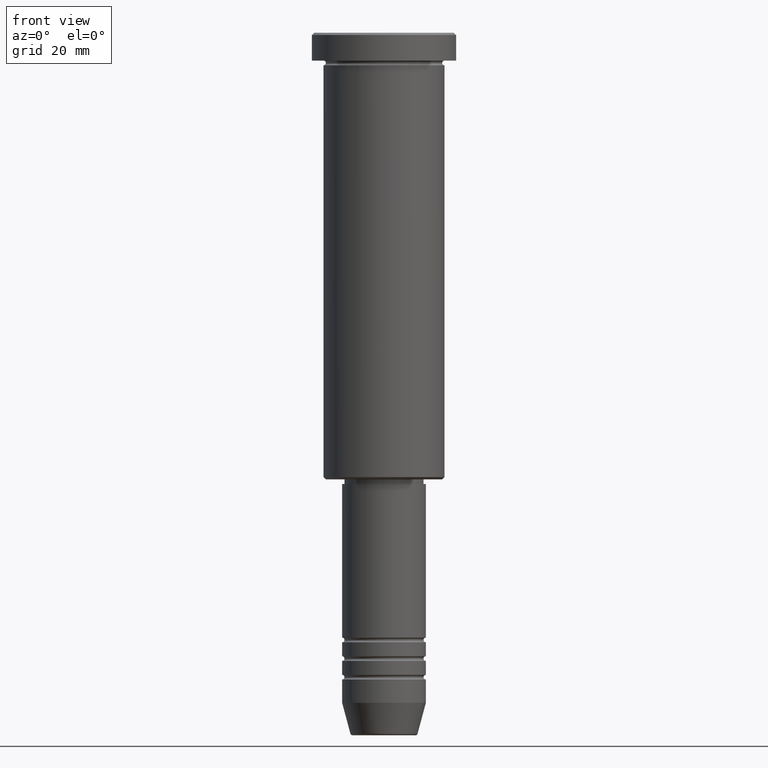
[diagram: clean part render]
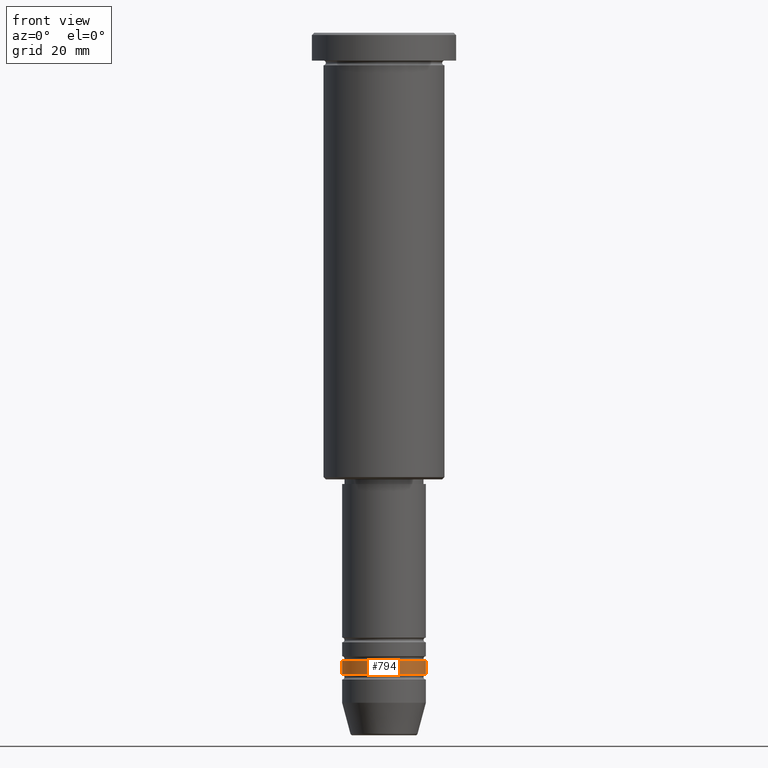
[diagram: same view with one face highlighted and labeled with its STEP entity id]
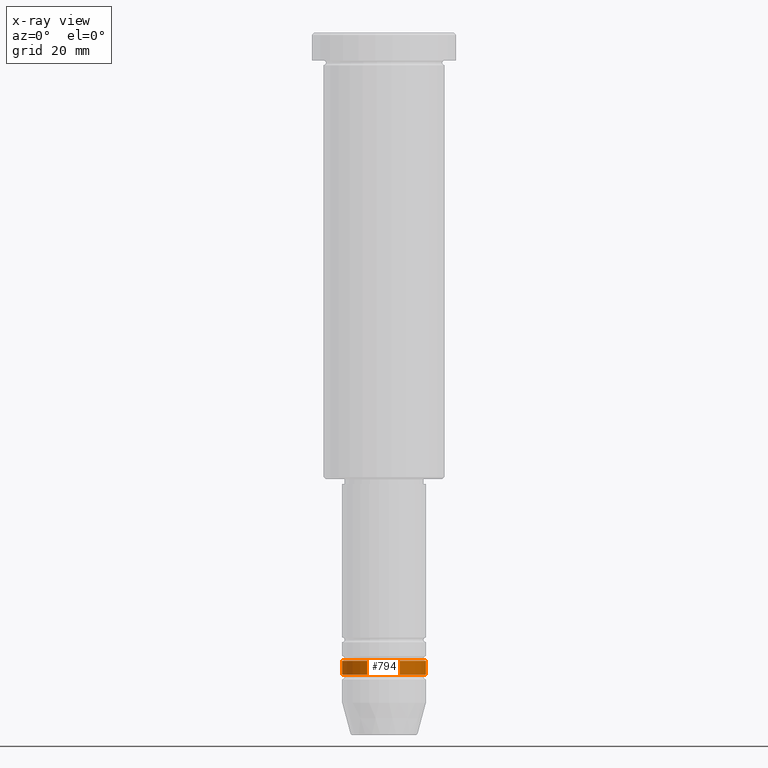
[diagram: x-ray of the same camera — body ghosted, the highlighted face saturated]
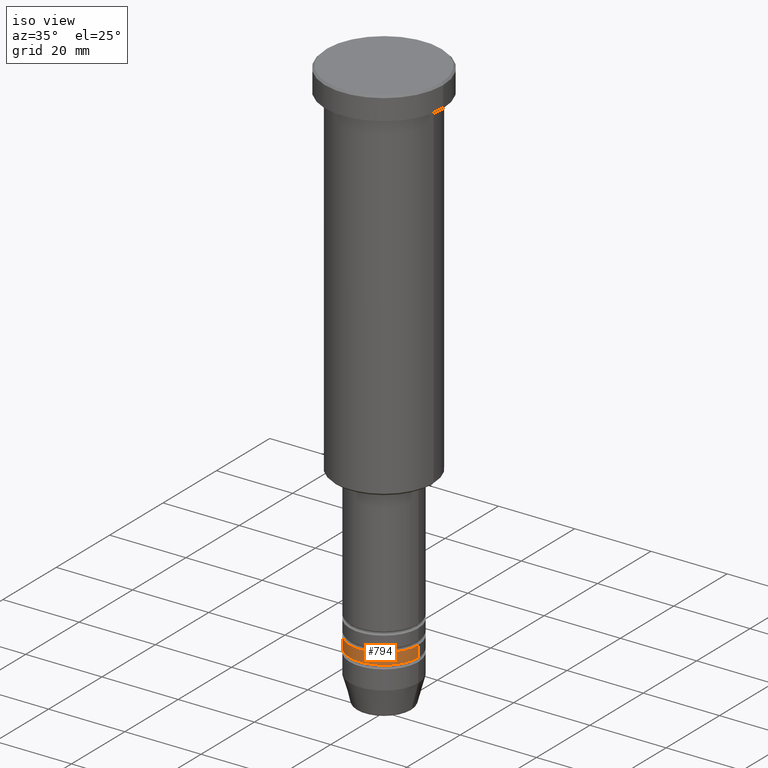
[diagram: same view with one face highlighted and labeled with its STEP entity id]
A machine part, front view. The second image highlights one B-rep face of the part: STEP entity #794.
The next image is the same camera in x-ray: the body ghosted, the highlighted face saturated — about 0% of this face is hidden behind the body in this view.
A second angle (iso view) of the same face is appended — the face is thin or edge-on in the first view.
In plain terms, the highlighted cylindrical surface (partial cylindrical patch) has radius 9 mm, axis along (-0, -0, 1).
Its self-contained STEP definition (entity closure, byte-faithful):
#8 = VERTEX_POINT ( 'NONE', #297 ) ;
#17 = CARTESIAN_POINT ( 'NONE',  ( 9.000000000000000000, 0.000000000000000000, -134.9999999999998863 ) ) ;
#35 = DIRECTION ( 'NONE',  ( -0.000000000000000000, -0.000000000000000000, 1.000000000000000000 ) ) ;
#37 = ORIENTED_EDGE ( 'NONE', *, *, #731, .F. ) ;
#107 = EDGE_LOOP ( 'NONE', ( #172, #809, #832, #37 ) ) ;
#120 = EDGE_CURVE ( 'NONE', #152, #643, #341, .T. ) ;
#140 = DIRECTION ( 'NONE',  ( 1.000000000000000000, 0.000000000000000000, 0.000000000000000000 ) ) ;
#146 = AXIS2_PLACEMENT_3D ( 'NONE', #704, #683, #230 ) ;
#152 = VERTEX_POINT ( 'NONE', #251 ) ;
#172 = ORIENTED_EDGE ( 'NONE', *, *, #387, .F. ) ;
#195 = VERTEX_POINT ( 'NONE', #17 ) ;
#230 = DIRECTION ( 'NONE',  ( 1.000000000000000000, 0.000000000000000000, 0.000000000000000000 ) ) ;
#251 = CARTESIAN_POINT ( 'NONE',  ( -9.000000000000001776, 1.102182119232617911E-15, -137.9999999999998863 ) ) ;
#297 = CARTESIAN_POINT ( 'NONE',  ( -9.000000000000000000, 1.102182119232617714E-15, -134.9999999999998863 ) ) ;
#306 = CARTESIAN_POINT ( 'NONE',  ( -9.000000000000001776, 1.102182119232617911E-15, 0.000000000000000000 ) ) ;
#341 = CIRCLE ( 'NONE', #1009, 9.000000000000001776 ) ;
#354 = LINE ( 'NONE', #983, #725 ) ;
#387 = EDGE_CURVE ( 'NONE', #152, #8, #757, .T. ) ;
#449 = DIRECTION ( 'NONE',  ( -0.000000000000000000, -0.000000000000000000, 1.000000000000000000 ) ) ;
#522 = EDGE_CURVE ( 'NONE', #643, #195, #354, .T. ) ;
#543 = DIRECTION ( 'NONE',  ( 1.000000000000000000, 0.000000000000000000, 0.000000000000000000 ) ) ;
#643 = VERTEX_POINT ( 'NONE', #655 ) ;
#655 = CARTESIAN_POINT ( 'NONE',  ( 9.000000000000001776, 0.000000000000000000, -137.9999999999998863 ) ) ;
#683 = DIRECTION ( 'NONE',  ( -0.000000000000000000, -0.000000000000000000, 1.000000000000000000 ) ) ;
#704 = CARTESIAN_POINT ( 'NONE',  ( 0.000000000000000000, 0.000000000000000000, -134.9999999999998863 ) ) ;
#725 = VECTOR ( 'NONE', #1151, 1000.000000000000000 ) ;
#731 = EDGE_CURVE ( 'NONE', #8, #195, #901, .T. ) ;
#757 = LINE ( 'NONE', #306, #936 ) ;
#794 = ADVANCED_FACE ( 'NONE', ( #1056 ), #1143, .T. ) ;
#809 = ORIENTED_EDGE ( 'NONE', *, *, #120, .T. ) ;
#832 = ORIENTED_EDGE ( 'NONE', *, *, #522, .T. ) ;
#887 = CARTESIAN_POINT ( 'NONE',  ( 0.000000000000000000, 0.000000000000000000, 0.000000000000000000 ) ) ;
#901 = CIRCLE ( 'NONE', #146, 9.000000000000000000 ) ;
#936 = VECTOR ( 'NONE', #35, 1000.000000000000000 ) ;
#983 = CARTESIAN_POINT ( 'NONE',  ( 9.000000000000001776, 0.000000000000000000, 0.000000000000000000 ) ) ;
#1009 = AXIS2_PLACEMENT_3D ( 'NONE', #1064, #449, #543 ) ;
#1043 = DIRECTION ( 'NONE',  ( -0.000000000000000000, -0.000000000000000000, 1.000000000000000000 ) ) ;
#1048 = AXIS2_PLACEMENT_3D ( 'NONE', #887, #1043, #140 ) ;
#1056 = FACE_OUTER_BOUND ( 'NONE', #107, .T. ) ;
#1064 = CARTESIAN_POINT ( 'NONE',  ( 0.000000000000000000, 0.000000000000000000, -137.9999999999998863 ) ) ;
#1143 = CYLINDRICAL_SURFACE ( 'NONE', #1048, 9.000000000000001776 ) ;
#1151 = DIRECTION ( 'NONE',  ( -0.000000000000000000, -0.000000000000000000, 1.000000000000000000 ) ) ;